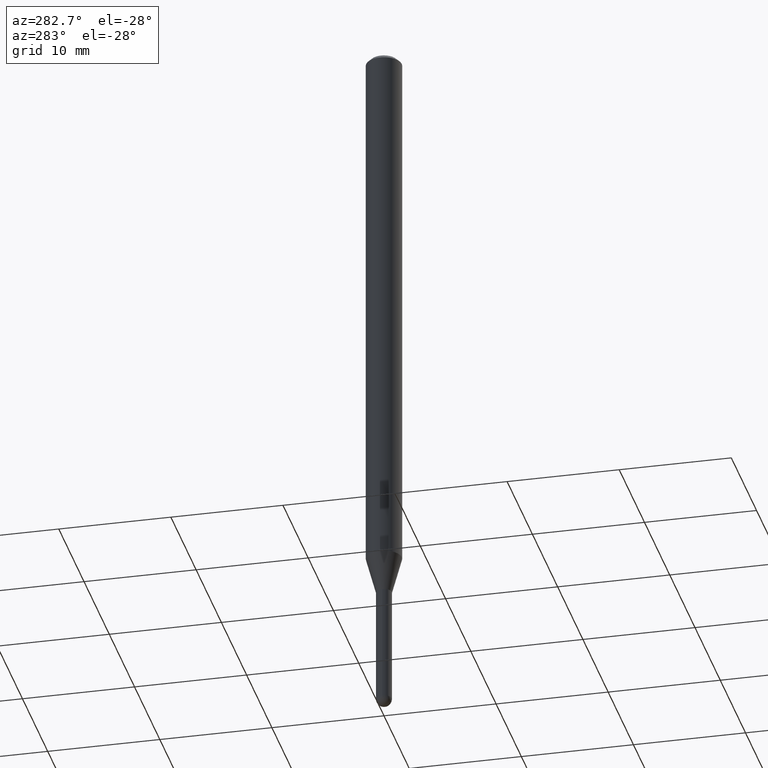
[diagram: clean part render]
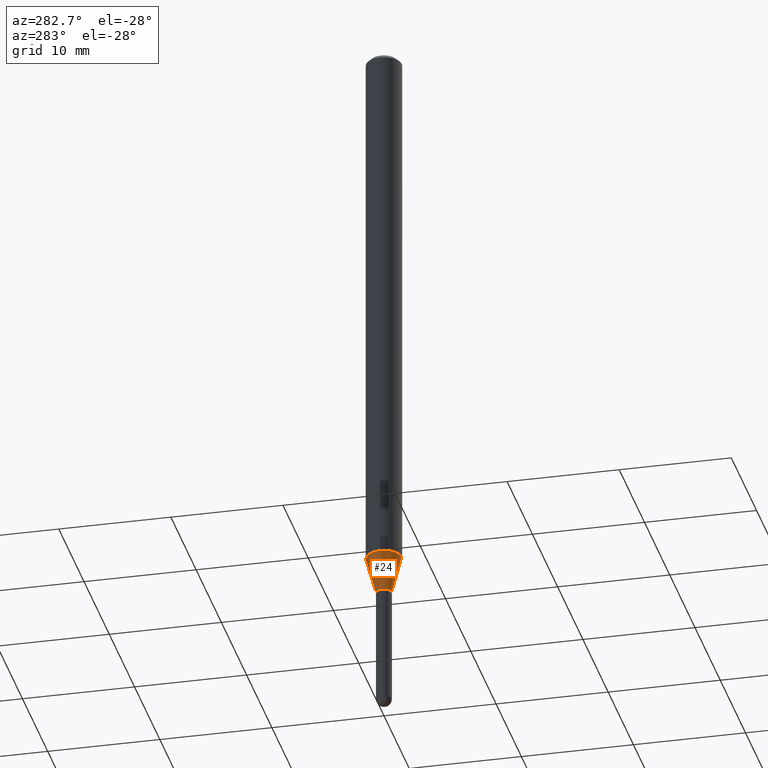
[diagram: same view with one face highlighted and labeled with its STEP entity id]
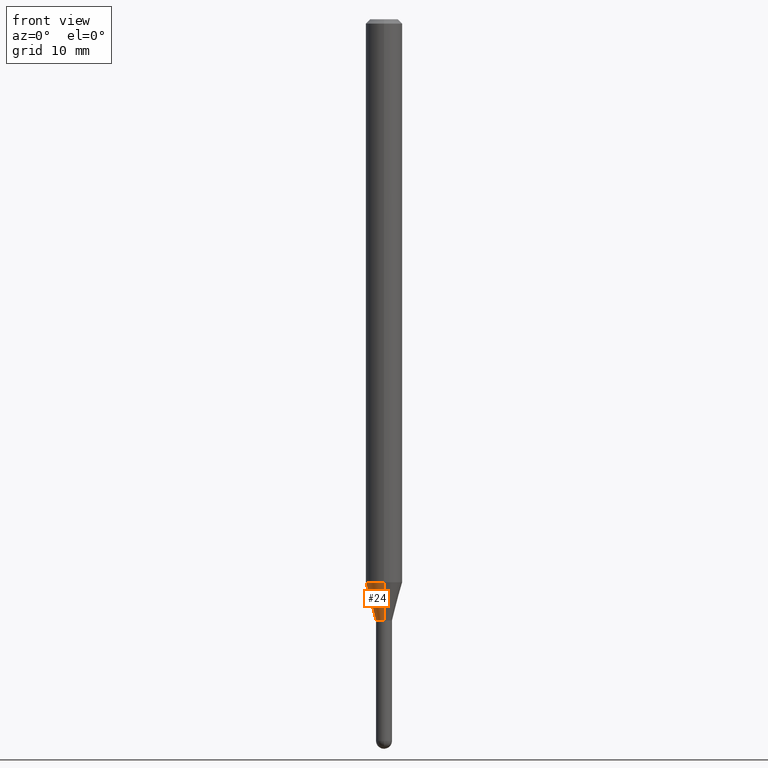
[diagram: same view with one face highlighted and labeled with its STEP entity id]
A machine part, auxiliary view. The second image highlights one B-rep face of the part: STEP entity #24.
A second angle (front view) of the same face is appended — the face is thin or edge-on in the first view.
In plain terms, the highlighted conical surface has half-angle 15 deg.
Its self-contained STEP definition (entity closure, byte-faithful):
#1 = DIRECTION ( 'NONE',  ( -2.445457103693514043E-29, 3.491498097477213736E-15, 1.000000000000000000 ) ) ;
#8 = CARTESIAN_POINT ( 'NONE',  ( 5.037641633608639187E-29, -7.192486080803059776E-15, -2.060000000000000053 ) ) ;
#11 = AXIS2_PLACEMENT_3D ( 'NONE', #8, #443, #38 ) ;
#12 = CIRCLE ( 'NONE', #507, 0.02750000000000019790 ) ;
#14 = DIRECTION ( 'NONE',  ( -6.982962677686265922E-15, -1.000000000000000000, 4.370956789862821150E-15 ) ) ;
#16 = DIRECTION ( 'NONE',  ( 1.839019923739652775E-15, 0.2588190451025323413, 0.9659258262890650926 ) ) ;
#24 = ADVANCED_FACE ( 'NONE', ( #410 ), #270, .T. ) ;
#38 = DIRECTION ( 'NONE',  ( -6.982962677686265922E-15, -1.000000000000000000, 0.000000000000000000 ) ) ;
#40 = CIRCLE ( 'NONE', #432, 0.06250000000000000000 ) ;
#52 = LINE ( 'NONE', #207, #158 ) ;
#61 = ORIENTED_EDGE ( 'NONE', *, *, #487, .T. ) ;
#132 = VERTEX_POINT ( 'NONE', #480 ) ;
#133 = LINE ( 'NONE', #208, #214 ) ;
#158 = VECTOR ( 'NONE', #16, 39.37007874015748143 ) ;
#168 = DIRECTION ( 'NONE',  ( -2.445457103693514043E-29, 3.491498097477213736E-15, 1.000000000000000000 ) ) ;
#183 = DIRECTION ( 'NONE',  ( -6.982962677686265922E-15, -1.000000000000000000, 0.000000000000000000 ) ) ;
#186 = CARTESIAN_POINT ( 'NONE',  ( 5.037641633608639187E-29, -7.192486080803059776E-15, -2.060000000000000053 ) ) ;
#207 = CARTESIAN_POINT ( 'NONE',  ( 1.953992523340792964E-16, 0.02749999999999300573, -2.060000000000000053 ) ) ;
#208 = CARTESIAN_POINT ( 'NONE',  ( -1.920314736363233118E-16, -0.02750000000000739006, -2.060000000000000053 ) ) ;
#214 = VECTOR ( 'NONE', #461, 39.37007874015748854 ) ;
#232 = EDGE_LOOP ( 'NONE', ( #449, #281, #61, #474 ) ) ;
#258 = EDGE_CURVE ( 'NONE', #356, #381, #40, .T. ) ;
#270 = CONICAL_SURFACE ( 'NONE', #11, 0.02750000000000019790, 0.2617993877991579010 ) ;
#281 = ORIENTED_EDGE ( 'NONE', *, *, #379, .T. ) ;
#320 = EDGE_CURVE ( 'NONE', #340, #356, #52, .T. ) ;
#333 = CARTESIAN_POINT ( 'NONE',  ( 3.197442310920946221E-16, 0.02749999999999300573, -2.060000000000000053 ) ) ;
#340 = VERTEX_POINT ( 'NONE', #333 ) ;
#353 = CARTESIAN_POINT ( 'NONE',  ( -4.364351673553446829E-16, -0.06250000000000677236, -1.929378221735094323 ) ) ;
#356 = VERTEX_POINT ( 'NONE', #398 ) ;
#379 = EDGE_CURVE ( 'NONE', #340, #132, #12, .T. ) ;
#381 = VERTEX_POINT ( 'NONE', #353 ) ;
#398 = CARTESIAN_POINT ( 'NONE',  ( 4.440892098501095534E-16, 0.06249999999999324846, -1.929378221735094767 ) ) ;
#410 = FACE_OUTER_BOUND ( 'NONE', #232, .T. ) ;
#432 = AXIS2_PLACEMENT_3D ( 'NONE', #489, #168, #14 ) ;
#443 = DIRECTION ( 'NONE',  ( -2.445457103693514043E-29, 3.491498097477213736E-15, 1.000000000000000000 ) ) ;
#449 = ORIENTED_EDGE ( 'NONE', *, *, #320, .F. ) ;
#461 = DIRECTION ( 'NONE',  ( -1.807323732225381810E-15, -0.2588190451025255689, 0.9659258262890669799 ) ) ;
#474 = ORIENTED_EDGE ( 'NONE', *, *, #258, .F. ) ;
#480 = CARTESIAN_POINT ( 'NONE',  ( -1.920314736363233118E-16, -0.02750000000000739006, -2.060000000000000053 ) ) ;
#487 = EDGE_CURVE ( 'NONE', #132, #381, #133, .T. ) ;
#489 = CARTESIAN_POINT ( 'NONE',  ( 4.718211678053647219E-29, -6.736420390502052226E-15, -1.929378221735094545 ) ) ;
#507 = AXIS2_PLACEMENT_3D ( 'NONE', #186, #1, #183 ) ;